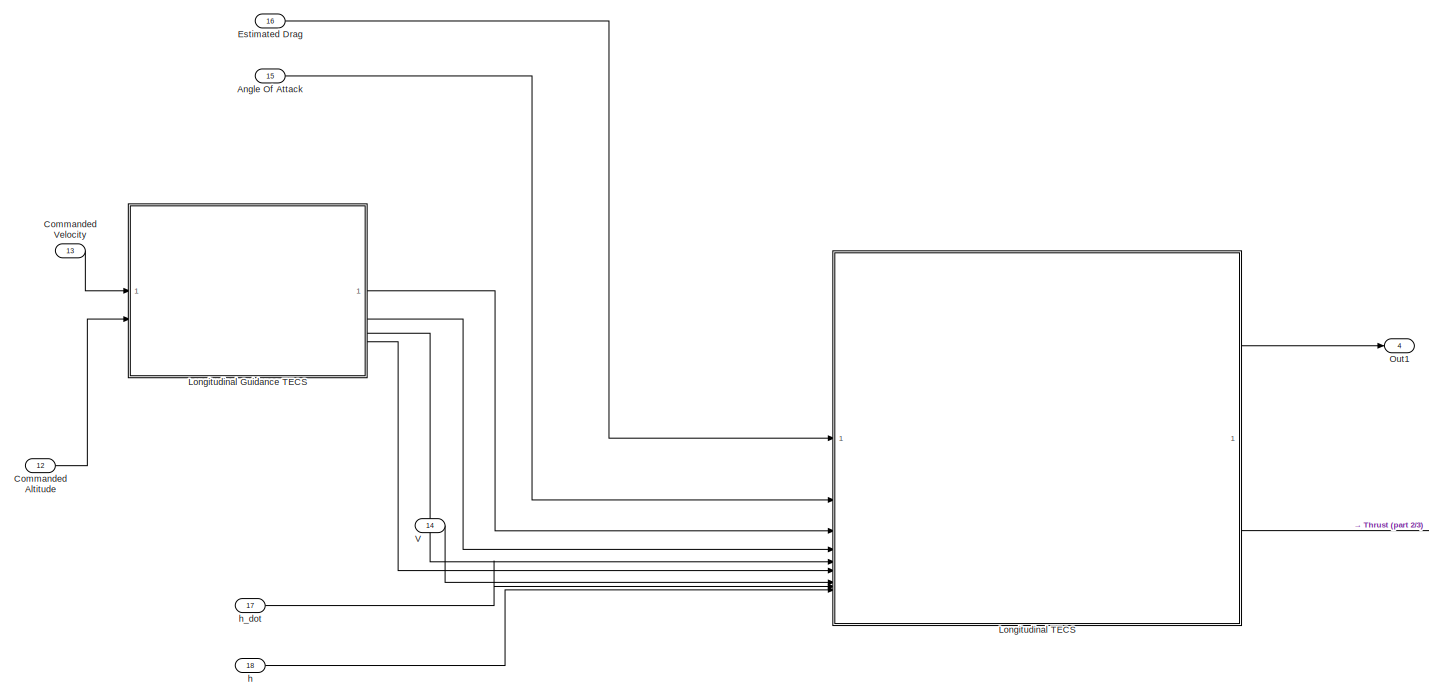
[diagram: root canvas - part 1/3, full width, top band]
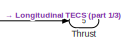
[diagram: root canvas - part 2/3, middle right region]
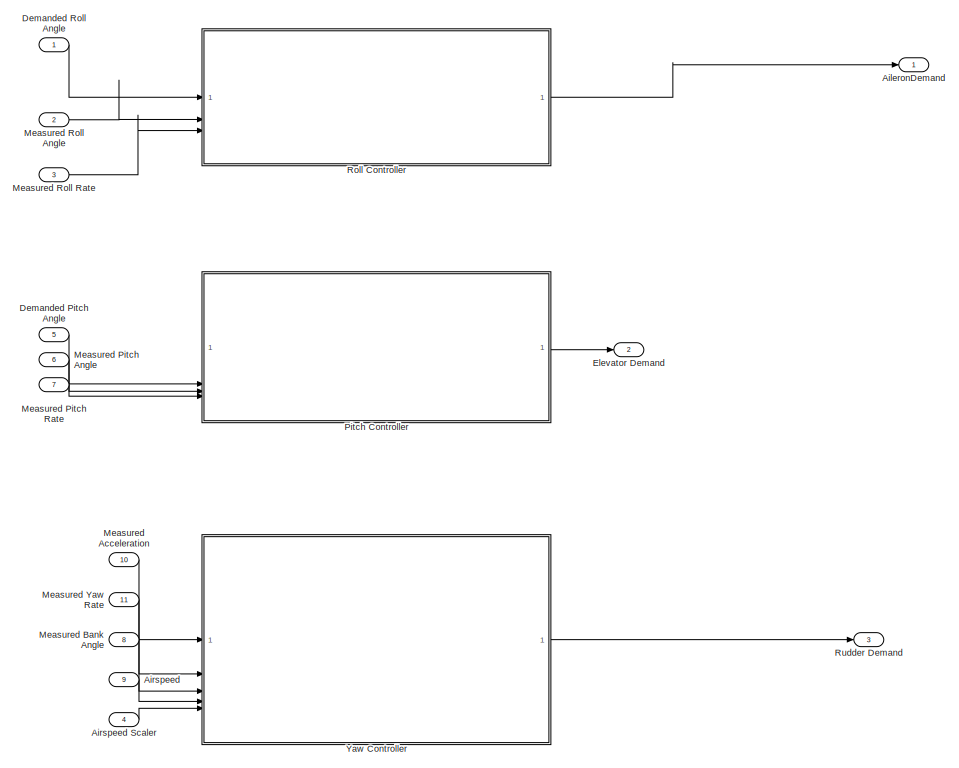
[diagram: root canvas - part 3/3, bottom center region]
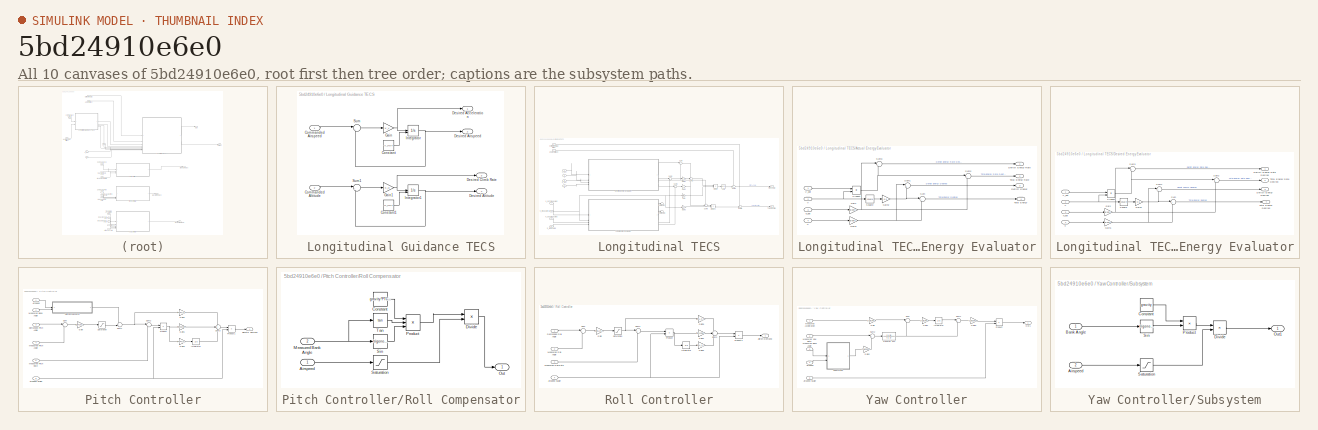
[diagram: thumbnail index - all 10 canvases of the model, root first then tree order]
MODEL slx_5bd24910e6e0
KIND model
CONFIG AbsTol = auto
CONFIG EnableMultiTasking = off
CONFIG FixedStep = auto
CONFIG MaxStep = auto
CONFIG MinStep = auto
CONFIG RelTol = 1e-3
CONFIG SampleTimeConstraint = Unconstrained
CONFIG SolverName = VariableStepAuto
CONFIG StartTime = 0.0
CONFIG StopTime = 10.0
BLOCK [Outport] AileronDemand
BLOCK [Inport] Airspeed 
  Port = 9
BLOCK [Inport] Airspeed Scaler
  Port = 4
BLOCK [Inport] Angle Of Attack
  Port = 15
BLOCK [Inport] Commanded Altitude
  Port = 12
BLOCK [Inport] Commanded Velocity
  Port = 13
BLOCK [Inport] Demanded Pitch Angle
  Port = 5
BLOCK [Inport] Demanded Roll Angle
BLOCK [Outport] Elevator Demand
  Port = 2
BLOCK [Inport] Estimated Drag
  Port = 16
BLOCK [SubSystem] Longitudinal Guidance TECS
BLOCK [Inport] Longitudinal Guidance TECS/Commanded Airspeed
BLOCK [Inport] Longitudinal Guidance TECS/Commanded Altitude
  Port = 2
BLOCK [Constant] Longitudinal Guidance TECS/Constant
  Value = V_INIT
BLOCK [Constant] Longitudinal Guidance TECS/Constant1
  Value = H_INIT
BLOCK [Outport] Longitudinal Guidance TECS/Desired Acceleration
BLOCK [Outport] Longitudinal Guidance TECS/Desired Airspeed
  Port = 2
BLOCK [Outport] Longitudinal Guidance TECS/Desired Altitude
  Port = 4
BLOCK [Outport] Longitudinal Guidance TECS/Desired Climb Rate
  Port = 3
BLOCK [Gain] Longitudinal Guidance TECS/Gain
  Gain = K_V
BLOCK [Gain] Longitudinal Guidance TECS/Gain1
  Gain = K_H
BLOCK [Integrator] Longitudinal Guidance TECS/Integrator
  InitialConditionSource = external
BLOCK [Integrator] Longitudinal Guidance TECS/Integrator1
  InitialConditionSource = external
BLOCK [Sum] Longitudinal Guidance TECS/Sum
  Inputs = |+-
BLOCK [Sum] Longitudinal Guidance TECS/Sum1
  Inputs = |+-
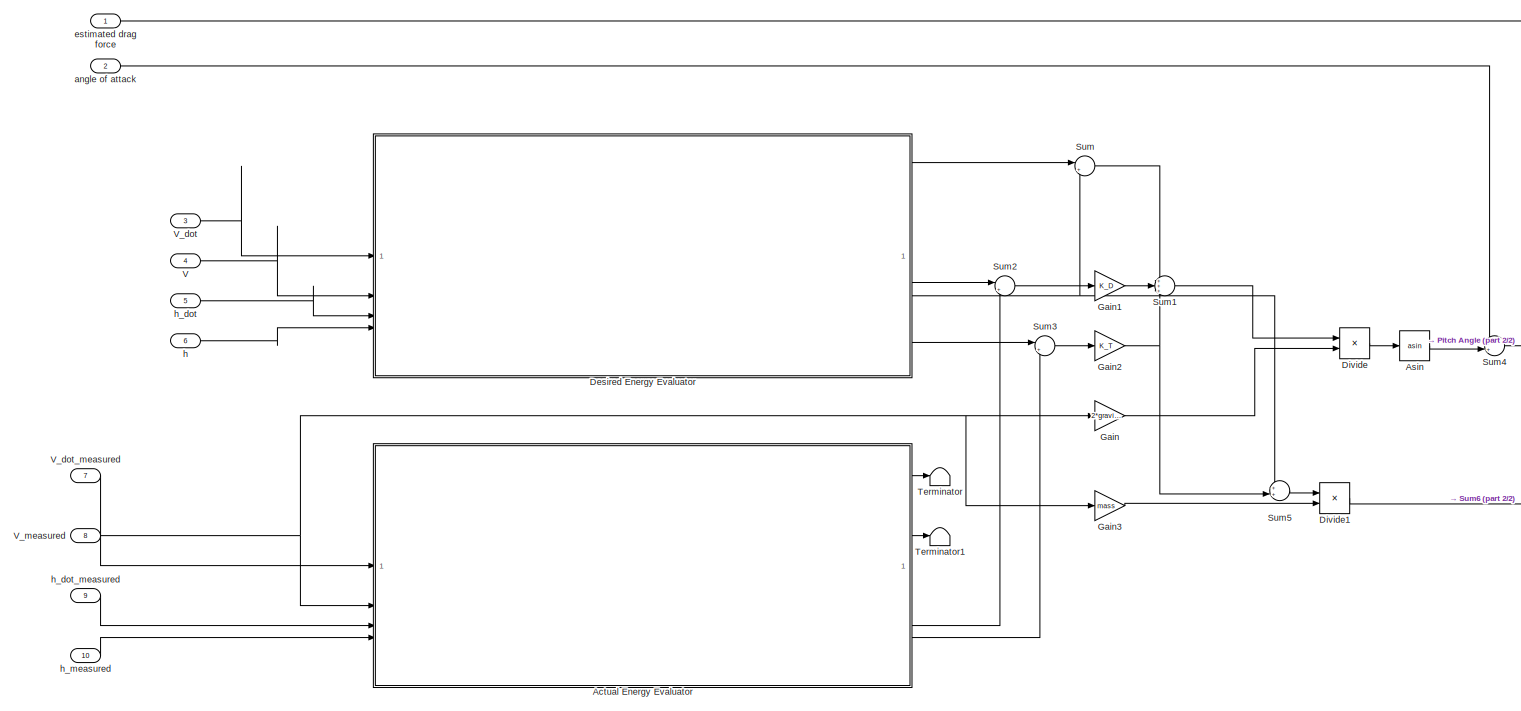
[diagram: Longitudinal TECS - part 1/2, most of the canvas]
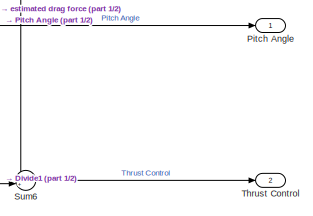
[diagram: Longitudinal TECS - part 2/2, middle right region]
BLOCK [SubSystem] Longitudinal TECS
BLOCK [SubSystem] Longitudinal TECS/Actual Energy Evaluator
BLOCK [Outport] Longitudinal TECS/Actual Energy Evaluator/Deficit Energy
  Port = 3
BLOCK [Outport] Longitudinal TECS/Actual Energy Evaluator/Deficit Energy Rate
BLOCK [Gain] Longitudinal TECS/Actual Energy Evaluator/Gain
  Gain = gravity
BLOCK [Gain] Longitudinal TECS/Actual Energy Evaluator/Gain1
  Gain = gravity
BLOCK [Gain] Longitudinal TECS/Actual Energy Evaluator/Gain2
  Gain = 0.5
BLOCK [Product] Longitudinal TECS/Actual Energy Evaluator/Product
BLOCK [Math] Longitudinal TECS/Actual Energy Evaluator/Square
  Operator = square
BLOCK [Sum] Longitudinal TECS/Actual Energy Evaluator/Sum
  Inputs = |++
BLOCK [Sum] Longitudinal TECS/Actual Energy Evaluator/Sum1
  Inputs = |+-
BLOCK [Sum] Longitudinal TECS/Actual Energy Evaluator/Sum2
  Inputs = |++
BLOCK [Sum] Longitudinal TECS/Actual Energy Evaluator/Sum3
  Inputs = |+-
BLOCK [Outport] Longitudinal TECS/Actual Energy Evaluator/Total Energy
  Port = 4
BLOCK [Outport] Longitudinal TECS/Actual Energy Evaluator/Total Energy Rate
  Port = 2
BLOCK [Inport] Longitudinal TECS/Actual Energy Evaluator/V
  Port = 2
BLOCK [Inport] Longitudinal TECS/Actual Energy Evaluator/V_dot
BLOCK [Inport] Longitudinal TECS/Actual Energy Evaluator/h
  Port = 4
BLOCK [Inport] Longitudinal TECS/Actual Energy Evaluator/h_dot
  Port = 3
BLOCK [Trigonometry] Longitudinal TECS/Asin
  Operator = asin
BLOCK [SubSystem] Longitudinal TECS/Desired Energy Evaluator
BLOCK [Outport] Longitudinal TECS/Desired Energy Evaluator/Deficit Energy Desired
  Port = 3
BLOCK [Outport] Longitudinal TECS/Desired Energy Evaluator/Deficit Energy Rate Desired
BLOCK [Gain] Longitudinal TECS/Desired Energy Evaluator/Gain
  Gain = gravity
BLOCK [Gain] Longitudinal TECS/Desired Energy Evaluator/Gain1
  Gain = gravity
BLOCK [Gain] Longitudinal TECS/Desired Energy Evaluator/Gain2
  Gain = 0.5
BLOCK [Product] Longitudinal TECS/Desired Energy Evaluator/Product
BLOCK [Math] Longitudinal TECS/Desired Energy Evaluator/Square
  Operator = square
BLOCK [Sum] Longitudinal TECS/Desired Energy Evaluator/Sum
  Inputs = |++
BLOCK [Sum] Longitudinal TECS/Desired Energy Evaluator/Sum1
  Inputs = |+-
BLOCK [Sum] Longitudinal TECS/Desired Energy Evaluator/Sum2
  Inputs = |++
BLOCK [Sum] Longitudinal TECS/Desired Energy Evaluator/Sum3
  Inputs = |+-
BLOCK [Outport] Longitudinal TECS/Desired Energy Evaluator/Total Energy Desired
  Port = 4
BLOCK [Outport] Longitudinal TECS/Desired Energy Evaluator/Total Energy Rate Desired
  Port = 2
BLOCK [Inport] Longitudinal TECS/Desired Energy Evaluator/V
  Port = 2
BLOCK [Inport] Longitudinal TECS/Desired Energy Evaluator/V_dot
BLOCK [Inport] Longitudinal TECS/Desired Energy Evaluator/h
  Port = 4
BLOCK [Inport] Longitudinal TECS/Desired Energy Evaluator/h_dot
  Port = 3
BLOCK [Product] Longitudinal TECS/Divide
  Inputs = */
BLOCK [Product] Longitudinal TECS/Divide1
  Inputs = */
BLOCK [Gain] Longitudinal TECS/Gain
  Gain = 2*gravity
BLOCK [Gain] Longitudinal TECS/Gain1
  Gain = K_D
BLOCK [Gain] Longitudinal TECS/Gain2
  Gain = K_T
BLOCK [Gain] Longitudinal TECS/Gain3
  Gain = mass
BLOCK [Outport] Longitudinal TECS/Pitch Angle
BLOCK [Sum] Longitudinal TECS/Sum
  Inputs = |++
BLOCK [Sum] Longitudinal TECS/Sum1
  Inputs = +++
BLOCK [Sum] Longitudinal TECS/Sum2
  Inputs = |+-
BLOCK [Sum] Longitudinal TECS/Sum3
  Inputs = |+-
BLOCK [Sum] Longitudinal TECS/Sum4
  Inputs = ++|
BLOCK [Sum] Longitudinal TECS/Sum5
  Inputs = ++|
BLOCK [Sum] Longitudinal TECS/Sum6
  Inputs = ++|
BLOCK [Terminator] Longitudinal TECS/Terminator
BLOCK [Terminator] Longitudinal TECS/Terminator1
BLOCK [Outport] Longitudinal TECS/Thrust Control
  Port = 2
BLOCK [Inport] Longitudinal TECS/V
  Port = 4
BLOCK [Inport] Longitudinal TECS/V_dot
  Port = 3
BLOCK [Inport] Longitudinal TECS/V_dot_measured
  Port = 7
BLOCK [Inport] Longitudinal TECS/V_measured
  Port = 8
BLOCK [Inport] Longitudinal TECS/angle of attack
  Port = 2
BLOCK [Inport] Longitudinal TECS/estimated drag force
BLOCK [Inport] Longitudinal TECS/h
  Port = 6
BLOCK [Inport] Longitudinal TECS/h_dot
  Port = 5
BLOCK [Inport] Longitudinal TECS/h_dot_measured
  Port = 9
BLOCK [Inport] Longitudinal TECS/h_measured
  Port = 10
BLOCK [Inport] Measured Acceleration
  Port = 10
BLOCK [Inport] Measured Bank Angle
  Port = 8
BLOCK [Inport] Measured Pitch Angle
  Port = 6
BLOCK [Inport] Measured Pitch Rate
  Port = 7
BLOCK [Inport] Measured Roll Angle
  Port = 2
BLOCK [Inport] Measured Roll Rate
  Port = 3
BLOCK [Inport] Measured Yaw Rate
  Port = 11
BLOCK [Outport] Out1
  Port = 4
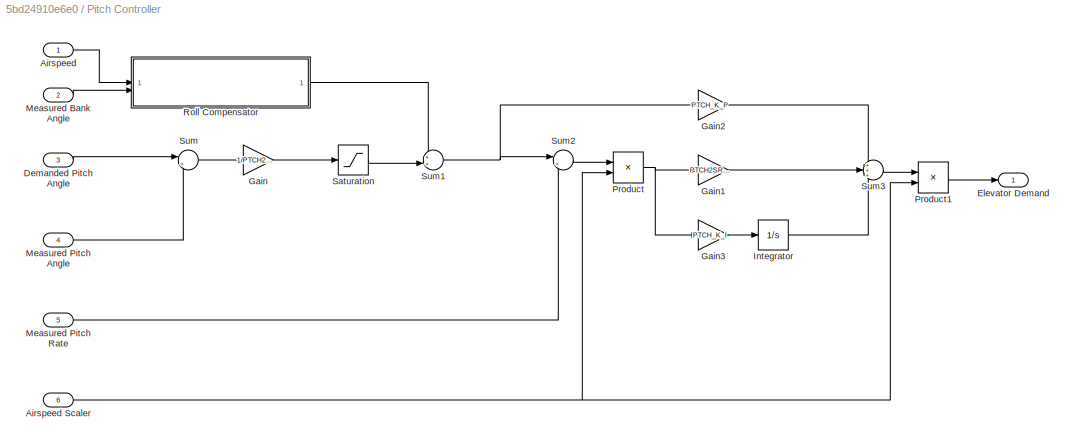
BLOCK [SubSystem] Pitch Controller
BLOCK [Inport] Pitch Controller/Airspeed
BLOCK [Inport] Pitch Controller/Airspeed Scaler
  Port = 6
BLOCK [Inport] Pitch Controller/Demanded Pitch Angle
  Port = 3
BLOCK [Outport] Pitch Controller/Elevator Demand
BLOCK [Gain] Pitch Controller/Gain
  Gain = 1/PTCH2SRV_TCONST
BLOCK [Gain] Pitch Controller/Gain1
  Gain = PTCH2SRV_D
BLOCK [Gain] Pitch Controller/Gain2
  Gain = PTCH_K_P
BLOCK [Gain] Pitch Controller/Gain3
  Gain = PTCH_K_I
BLOCK [Integrator] Pitch Controller/Integrator
BLOCK [Inport] Pitch Controller/Measured Bank Angle
  Port = 2
BLOCK [Inport] Pitch Controller/Measured Pitch Angle
  Port = 4
BLOCK [Inport] Pitch Controller/Measured Pitch Rate
  Port = 5
BLOCK [Product] Pitch Controller/Product
BLOCK [Product] Pitch Controller/Product1
BLOCK [SubSystem] Pitch Controller/Roll Compensator
BLOCK [Inport] Pitch Controller/Roll Compensator/Airspeed
BLOCK [Constant] Pitch Controller/Roll Compensator/Constant
  Value = gravity*PTCH2SRV_RLL
BLOCK [Product] Pitch Controller/Roll Compensator/Divide
  Inputs = */
BLOCK [Inport] Pitch Controller/Roll Compensator/Measured Bank Angle
  Port = 2
BLOCK [Outport] Pitch Controller/Roll Compensator/Out
BLOCK [Product] Pitch Controller/Roll Compensator/Product
  Inputs = 3
BLOCK [Saturate] Pitch Controller/Roll Compensator/Saturation
  LowerLimit = aspd_min
  UpperLimit = inf
BLOCK [Trigonometry] Pitch Controller/Roll Compensator/Sin
BLOCK [Trigonometry] Pitch Controller/Roll Compensator/Tan
  Operator = tan
BLOCK [Saturate] Pitch Controller/Saturation
  LowerLimit = PTCH2SRV_RMAX_DN
  UpperLimit = PTCH2SRV_RMAX_UP
BLOCK [Sum] Pitch Controller/Sum
  Inputs = |+-
BLOCK [Sum] Pitch Controller/Sum1
  Inputs = ++|
BLOCK [Sum] Pitch Controller/Sum2
  Inputs = |+-
BLOCK [Sum] Pitch Controller/Sum3
  Inputs = +++
BLOCK [SubSystem] Roll Controller
BLOCK [Outport] Roll Controller/Aileron Demand
BLOCK [Inport] Roll Controller/Airspeed Scaler
  Port = 4
BLOCK [Inport] Roll Controller/Demanded Roll Angle
BLOCK [Gain] Roll Controller/Gain
  Gain = 1/RLL2SRV_TCONST
BLOCK [Gain] Roll Controller/Gain1
  Gain = RLL2SRV_D
BLOCK [Gain] Roll Controller/Gain2
  Gain = RLL_K_I
BLOCK [Gain] Roll Controller/Gain3
  Gain = RLL_K_P
BLOCK [Integrator] Roll Controller/Integrator
BLOCK [Inport] Roll Controller/Measured Roll Angle
  Port = 2
BLOCK [Inport] Roll Controller/Measured Roll Rate
  Port = 3
BLOCK [Product] Roll Controller/Product
BLOCK [Product] Roll Controller/Product1
BLOCK [Saturate] Roll Controller/Saturation
  LowerLimit = -RLL2SRV_MAX
  UpperLimit = RLL2SRV_MAX
BLOCK [Sum] Roll Controller/Sum
  Inputs = |+-
BLOCK [Sum] Roll Controller/Sum1
  Inputs = |+-
BLOCK [Sum] Roll Controller/Sum2
  Inputs = +++
BLOCK [Outport] Rudder Demand
  Port = 3
BLOCK [Outport] Thrust
  Port = 5
BLOCK [Inport] V
  Port = 14
BLOCK [SubSystem] Yaw Controller
BLOCK [Inport] Yaw Controller/Airspeed
  Port = 4
BLOCK [Inport] Yaw Controller/Airspeed Scaler
  Port = 5
BLOCK [Gain] Yaw Controller/Gain
  Gain = YAW2SRV_SLIP
BLOCK [Gain] Yaw Controller/Gain1
  Gain = YAW2SRV_INT
BLOCK [Gain] Yaw Controller/Gain2
  Gain = YAW2SRV_RLL
BLOCK [Gain] Yaw Controller/Gain3
  Gain = YAW2SRV_DAMP
BLOCK [Integrator] Yaw Controller/Integrator
BLOCK [Inport] Yaw Controller/Measured Acceleration
BLOCK [Inport] Yaw Controller/Measured Bank Angle
  Port = 3
BLOCK [Inport] Yaw Controller/Measured Yaw Rate
  Port = 2
BLOCK [Outport] Yaw Controller/Out1
BLOCK [Product] Yaw Controller/Product
BLOCK [SubSystem] Yaw Controller/Subsystem
BLOCK [Inport] Yaw Controller/Subsystem/Airspeed
  Port = 2
BLOCK [Inport] Yaw Controller/Subsystem/Bank Angle
BLOCK [Constant] Yaw Controller/Subsystem/Constant
  Value = gravity
BLOCK [Product] Yaw Controller/Subsystem/Divide
  Inputs = */
BLOCK [Outport] Yaw Controller/Subsystem/Out1
BLOCK [Product] Yaw Controller/Subsystem/Product
BLOCK [Saturate] Yaw Controller/Subsystem/Saturation
  LowerLimit = aspd_min
  UpperLimit = inf
BLOCK [Trigonometry] Yaw Controller/Subsystem/Sin
BLOCK [Sum] Yaw Controller/Sum
  Inputs = |--
BLOCK [Sum] Yaw Controller/Sum1
  Inputs = |+-
BLOCK [Sum] Yaw Controller/Sum2
  Inputs = |+-
BLOCK [TransferFcn] Yaw Controller/Transfer Fcn
  Denominator = [1 1]
  Numerator = [1 0]
BLOCK [Inport] h
  Port = 18
BLOCK [Inport] h_dot
  Port = 17
LINE Airspeed :1 -> Yaw Controller:4
LINE Airspeed Scaler:1 -> Yaw Controller:5
LINE Angle Of Attack:1 -> Longitudinal TECS:2
LINE Commanded Altitude:1 -> Longitudinal Guidance TECS:2
LINE Commanded Velocity:1 -> Longitudinal Guidance TECS:1
LINE Demanded Pitch Angle:1 -> Pitch Controller:3
LINE Demanded Roll Angle:1 -> Roll Controller:1
LINE Estimated Drag:1 -> Longitudinal TECS:1
LINE Longitudinal Guidance TECS/Commanded Airspeed:1 -> Longitudinal Guidance TECS/Sum:1
LINE Longitudinal Guidance TECS/Commanded Altitude:1 -> Longitudinal Guidance TECS/Sum1:1
LINE Longitudinal Guidance TECS/Constant1:1 -> Longitudinal Guidance TECS/Integrator1:2
LINE Longitudinal Guidance TECS/Constant:1 -> Longitudinal Guidance TECS/Integrator:2
NET Longitudinal Guidance TECS/Gain1:1 -> Longitudinal Guidance TECS/Desired Climb Rate:1, Longitudinal Guidance TECS/Integrator1:1
NET Longitudinal Guidance TECS/Gain:1 -> Longitudinal Guidance TECS/Desired Acceleration:1, Longitudinal Guidance TECS/Integrator:1
NET Longitudinal Guidance TECS/Integrator1:1 -> Longitudinal Guidance TECS/Desired Altitude:1, Longitudinal Guidance TECS/Sum1:2
NET Longitudinal Guidance TECS/Integrator:1 -> Longitudinal Guidance TECS/Desired Airspeed:1, Longitudinal Guidance TECS/Sum:2
LINE Longitudinal Guidance TECS/Sum1:1 -> Longitudinal Guidance TECS/Gain1:1
LINE Longitudinal Guidance TECS/Sum:1 -> Longitudinal Guidance TECS/Gain:1
LINE Longitudinal Guidance TECS:1 -> Longitudinal TECS:3
LINE Longitudinal Guidance TECS:2 -> Longitudinal TECS:4
LINE Longitudinal Guidance TECS:3 -> Longitudinal TECS:5
LINE Longitudinal Guidance TECS:4 -> Longitudinal TECS:6
NET Longitudinal TECS/Actual Energy Evaluator/Gain1:1 -> Longitudinal TECS/Actual Energy Evaluator/Sum1:1, Longitudinal TECS/Actual Energy Evaluator/Sum:2
NET Longitudinal TECS/Actual Energy Evaluator/Gain2:1 -> Longitudinal TECS/Actual Energy Evaluator/Sum1:2, Longitudinal TECS/Actual Energy Evaluator/Sum:1
NET Longitudinal TECS/Actual Energy Evaluator/Gain:1 -> Longitudinal TECS/Actual Energy Evaluator/Sum2:2, Longitudinal TECS/Actual Energy Evaluator/Sum3:1
NET Longitudinal TECS/Actual Energy Evaluator/Product:1 -> Longitudinal TECS/Actual Energy Evaluator/Sum2:1, Longitudinal TECS/Actual Energy Evaluator/Sum3:2
LINE Longitudinal TECS/Actual Energy Evaluator/Square:1 -> Longitudinal TECS/Actual Energy Evaluator/Gain2:1
LINE Longitudinal TECS/Actual Energy Evaluator/Sum1:1 -> Longitudinal TECS/Actual Energy Evaluator/Deficit Energy:1
LINE Longitudinal TECS/Actual Energy Evaluator/Sum2:1 -> Longitudinal TECS/Actual Energy Evaluator/Total Energy Rate:1
LINE Longitudinal TECS/Actual Energy Evaluator/Sum3:1 -> Longitudinal TECS/Actual Energy Evaluator/Deficit Energy Rate:1
LINE Longitudinal TECS/Actual Energy Evaluator/Sum:1 -> Longitudinal TECS/Actual Energy Evaluator/Total Energy:1
NET Longitudinal TECS/Actual Energy Evaluator/V:1 -> Longitudinal TECS/Actual Energy Evaluator/Product:2, Longitudinal TECS/Actual Energy Evaluator/Square:1
LINE Longitudinal TECS/Actual Energy Evaluator/V_dot:1 -> Longitudinal TECS/Actual Energy Evaluator/Product:1
LINE Longitudinal TECS/Actual Energy Evaluator/h:1 -> Longitudinal TECS/Actual Energy Evaluator/Gain1:1
LINE Longitudinal TECS/Actual Energy Evaluator/h_dot:1 -> Longitudinal TECS/Actual Energy Evaluator/Gain:1
LINE Longitudinal TECS/Actual Energy Evaluator:1 -> Longitudinal TECS/Terminator:1
LINE Longitudinal TECS/Actual Energy Evaluator:2 -> Longitudinal TECS/Terminator1:1
LINE Longitudinal TECS/Actual Energy Evaluator:3 -> Longitudinal TECS/Sum2:2
LINE Longitudinal TECS/Actual Energy Evaluator:4 -> Longitudinal TECS/Sum3:2
LINE Longitudinal TECS/Asin:1 -> Longitudinal TECS/Sum4:2
NET Longitudinal TECS/Desired Energy Evaluator/Gain1:1 -> Longitudinal TECS/Desired Energy Evaluator/Sum1:1, Longitudinal TECS/Desired Energy Evaluator/Sum:2
NET Longitudinal TECS/Desired Energy Evaluator/Gain2:1 -> Longitudinal TECS/Desired Energy Evaluator/Sum1:2, Longitudinal TECS/Desired Energy Evaluator/Sum:1
NET Longitudinal TECS/Desired Energy Evaluator/Gain:1 -> Longitudinal TECS/Desired Energy Evaluator/Sum2:2, Longitudinal TECS/Desired Energy Evaluator/Sum3:1
NET Longitudinal TECS/Desired Energy Evaluator/Product:1 -> Longitudinal TECS/Desired Energy Evaluator/Sum2:1, Longitudinal TECS/Desired Energy Evaluator/Sum3:2
LINE Longitudinal TECS/Desired Energy Evaluator/Square:1 -> Longitudinal TECS/Desired Energy Evaluator/Gain2:1
LINE Longitudinal TECS/Desired Energy Evaluator/Sum1:1 -> Longitudinal TECS/Desired Energy Evaluator/Deficit Energy Desired:1
LINE Longitudinal TECS/Desired Energy Evaluator/Sum2:1 -> Longitudinal TECS/Desired Energy Evaluator/Total Energy Rate Desired:1
LINE Longitudinal TECS/Desired Energy Evaluator/Sum3:1 -> Longitudinal TECS/Desired Energy Evaluator/Deficit Energy Rate Desired:1
LINE Longitudinal TECS/Desired Energy Evaluator/Sum:1 -> Longitudinal TECS/Desired Energy Evaluator/Total Energy Desired:1
NET Longitudinal TECS/Desired Energy Evaluator/V:1 -> Longitudinal TECS/Desired Energy Evaluator/Product:2, Longitudinal TECS/Desired Energy Evaluator/Square:1
LINE Longitudinal TECS/Desired Energy Evaluator/V_dot:1 -> Longitudinal TECS/Desired Energy Evaluator/Product:1
LINE Longitudinal TECS/Desired Energy Evaluator/h:1 -> Longitudinal TECS/Desired Energy Evaluator/Gain1:1
LINE Longitudinal TECS/Desired Energy Evaluator/h_dot:1 -> Longitudinal TECS/Desired Energy Evaluator/Gain:1
LINE Longitudinal TECS/Desired Energy Evaluator:1 -> Longitudinal TECS/Sum:1
NET Longitudinal TECS/Desired Energy Evaluator:2 -> Longitudinal TECS/Sum5:1, Longitudinal TECS/Sum:2
LINE Longitudinal TECS/Desired Energy Evaluator:3 -> Longitudinal TECS/Sum2:1
LINE Longitudinal TECS/Desired Energy Evaluator:4 -> Longitudinal TECS/Sum3:1
LINE Longitudinal TECS/Divide1:1 -> Longitudinal TECS/Sum6:2
LINE Longitudinal TECS/Divide:1 -> Longitudinal TECS/Asin:1
LINE Longitudinal TECS/Gain1:1 -> Longitudinal TECS/Sum1:2
NET Longitudinal TECS/Gain2:1 -> Longitudinal TECS/Sum1:3, Longitudinal TECS/Sum5:2
LINE Longitudinal TECS/Gain3:1 -> Longitudinal TECS/Divide1:2
LINE Longitudinal TECS/Gain:1 -> Longitudinal TECS/Divide:2
LINE Longitudinal TECS/Sum1:1 -> Longitudinal TECS/Divide:1
LINE Longitudinal TECS/Sum2:1 -> Longitudinal TECS/Gain1:1
LINE Longitudinal TECS/Sum3:1 -> Longitudinal TECS/Gain2:1
LINE Longitudinal TECS/Sum4:1 -> Longitudinal TECS/Pitch Angle:1
LINE Longitudinal TECS/Sum5:1 -> Longitudinal TECS/Divide1:1
LINE Longitudinal TECS/Sum6:1 -> Longitudinal TECS/Thrust Control:1
LINE Longitudinal TECS/Sum:1 -> Longitudinal TECS/Sum1:1
LINE Longitudinal TECS/V:1 -> Longitudinal TECS/Desired Energy Evaluator:2
LINE Longitudinal TECS/V_dot:1 -> Longitudinal TECS/Desired Energy Evaluator:1
LINE Longitudinal TECS/V_dot_measured:1 -> Longitudinal TECS/Actual Energy Evaluator:1
NET Longitudinal TECS/V_measured:1 -> Longitudinal TECS/Actual Energy Evaluator:2, Longitudinal TECS/Gain3:1, Longitudinal TECS/Gain:1
LINE Longitudinal TECS/angle of attack:1 -> Longitudinal TECS/Sum4:1
LINE Longitudinal TECS/estimated drag force:1 -> Longitudinal TECS/Sum6:1
LINE Longitudinal TECS/h:1 -> Longitudinal TECS/Desired Energy Evaluator:4
LINE Longitudinal TECS/h_dot:1 -> Longitudinal TECS/Desired Energy Evaluator:3
LINE Longitudinal TECS/h_dot_measured:1 -> Longitudinal TECS/Actual Energy Evaluator:3
LINE Longitudinal TECS/h_measured:1 -> Longitudinal TECS/Actual Energy Evaluator:4
LINE Longitudinal TECS:1 -> Out1:1
LINE Longitudinal TECS:2 -> Thrust:1
LINE Measured Acceleration:1 -> Yaw Controller:1
LINE Measured Bank Angle:1 -> Yaw Controller:3
LINE Measured Pitch Angle:1 -> Pitch Controller:4
LINE Measured Pitch Rate:1 -> Pitch Controller:5
LINE Measured Roll Angle:1 -> Roll Controller:2
LINE Measured Roll Rate:1 -> Roll Controller:3
LINE Measured Yaw Rate:1 -> Yaw Controller:2
NET Pitch Controller/Airspeed Scaler:1 -> Pitch Controller/Product1:2, Pitch Controller/Product:2
LINE Pitch Controller/Airspeed:1 -> Pitch Controller/Roll Compensator:1
LINE Pitch Controller/Demanded Pitch Angle:1 -> Pitch Controller/Sum:1
LINE Pitch Controller/Gain1:1 -> Pitch Controller/Sum3:2
LINE Pitch Controller/Gain2:1 -> Pitch Controller/Sum3:1
LINE Pitch Controller/Gain3:1 -> Pitch Controller/Integrator:1
LINE Pitch Controller/Gain:1 -> Pitch Controller/Saturation:1
LINE Pitch Controller/Integrator:1 -> Pitch Controller/Sum3:3
LINE Pitch Controller/Measured Bank Angle:1 -> Pitch Controller/Roll Compensator:2
LINE Pitch Controller/Measured Pitch Angle:1 -> Pitch Controller/Sum:2
LINE Pitch Controller/Measured Pitch Rate:1 -> Pitch Controller/Sum2:2
LINE Pitch Controller/Product1:1 -> Pitch Controller/Elevator Demand:1
NET Pitch Controller/Product:1 -> Pitch Controller/Gain1:1, Pitch Controller/Gain3:1
LINE Pitch Controller/Roll Compensator/Airspeed:1 -> Pitch Controller/Roll Compensator/Saturation:1
LINE Pitch Controller/Roll Compensator/Constant:1 -> Pitch Controller/Roll Compensator/Product:1
LINE Pitch Controller/Roll Compensator/Divide:1 -> Pitch Controller/Roll Compensator/Out:1
NET Pitch Controller/Roll Compensator/Measured Bank Angle:1 -> Pitch Controller/Roll Compensator/Sin:1, Pitch Controller/Roll Compensator/Tan:1
LINE Pitch Controller/Roll Compensator/Product:1 -> Pitch Controller/Roll Compensator/Divide:1
LINE Pitch Controller/Roll Compensator/Saturation:1 -> Pitch Controller/Roll Compensator/Divide:2
LINE Pitch Controller/Roll Compensator/Sin:1 -> Pitch Controller/Roll Compensator/Product:3
LINE Pitch Controller/Roll Compensator/Tan:1 -> Pitch Controller/Roll Compensator/Product:2
LINE Pitch Controller/Roll Compensator:1 -> Pitch Controller/Sum1:1
LINE Pitch Controller/Saturation:1 -> Pitch Controller/Sum1:2
NET Pitch Controller/Sum1:1 -> Pitch Controller/Gain2:1, Pitch Controller/Sum2:1
LINE Pitch Controller/Sum2:1 -> Pitch Controller/Product:1
LINE Pitch Controller/Sum3:1 -> Pitch Controller/Product1:1
LINE Pitch Controller/Sum:1 -> Pitch Controller/Gain:1
LINE Pitch Controller:1 -> Elevator Demand:1
NET Roll Controller/Airspeed Scaler:1 -> Roll Controller/Product1:2, Roll Controller/Product:2
LINE Roll Controller/Demanded Roll Angle:1 -> Roll Controller/Sum:1
LINE Roll Controller/Gain1:1 -> Roll Controller/Sum2:2
LINE Roll Controller/Gain2:1 -> Roll Controller/Sum2:3
LINE Roll Controller/Gain3:1 -> Roll Controller/Sum2:1
LINE Roll Controller/Gain:1 -> Roll Controller/Saturation:1
LINE Roll Controller/Integrator:1 -> Roll Controller/Gain2:1
LINE Roll Controller/Measured Roll Angle:1 -> Roll Controller/Sum:2
LINE Roll Controller/Measured Roll Rate:1 -> Roll Controller/Sum1:2
LINE Roll Controller/Product1:1 -> Roll Controller/Aileron Demand:1
NET Roll Controller/Product:1 -> Roll Controller/Gain1:1, Roll Controller/Integrator:1
NET Roll Controller/Saturation:1 -> Roll Controller/Gain3:1, Roll Controller/Sum1:1
LINE Roll Controller/Sum1:1 -> Roll Controller/Product:1
LINE Roll Controller/Sum2:1 -> Roll Controller/Product1:1
LINE Roll Controller/Sum:1 -> Roll Controller/Gain:1
LINE Roll Controller:1 -> AileronDemand:1
LINE V:1 -> Longitudinal TECS:8
LINE Yaw Controller/Airspeed Scaler:1 -> Yaw Controller/Product:2
LINE Yaw Controller/Airspeed:1 -> Yaw Controller/Subsystem:2
LINE Yaw Controller/Gain1:1 -> Yaw Controller/Integrator:1
LINE Yaw Controller/Gain2:1 -> Yaw Controller/Sum2:2
LINE Yaw Controller/Gain3:1 -> Yaw Controller/Product:1
LINE Yaw Controller/Gain:1 -> Yaw Controller/Sum:1
LINE Yaw Controller/Integrator:1 -> Yaw Controller/Sum1:1
LINE Yaw Controller/Measured Acceleration:1 -> Yaw Controller/Gain:1
LINE Yaw Controller/Measured Bank Angle:1 -> Yaw Controller/Subsystem:1
LINE Yaw Controller/Measured Yaw Rate:1 -> Yaw Controller/Sum2:1
LINE Yaw Controller/Product:1 -> Yaw Controller/Out1:1
LINE Yaw Controller/Subsystem/Airspeed:1 -> Yaw Controller/Subsystem/Saturation:1
LINE Yaw Controller/Subsystem/Bank Angle:1 -> Yaw Controller/Subsystem/Sin:1
LINE Yaw Controller/Subsystem/Constant:1 -> Yaw Controller/Subsystem/Product:1
LINE Yaw Controller/Subsystem/Divide:1 -> Yaw Controller/Subsystem/Out1:1
LINE Yaw Controller/Subsystem/Product:1 -> Yaw Controller/Subsystem/Divide:1
LINE Yaw Controller/Subsystem/Saturation:1 -> Yaw Controller/Subsystem/Divide:2
LINE Yaw Controller/Subsystem/Sin:1 -> Yaw Controller/Subsystem/Product:2
LINE Yaw Controller/Subsystem:1 -> Yaw Controller/Gain2:1
LINE Yaw Controller/Sum1:1 -> Yaw Controller/Gain3:1
LINE Yaw Controller/Sum2:1 -> Yaw Controller/Transfer Fcn:1
LINE Yaw Controller/Sum:1 -> Yaw Controller/Gain1:1
NET Yaw Controller/Transfer Fcn:1 -> Yaw Controller/Sum1:2, Yaw Controller/Sum:2
LINE Yaw Controller:1 -> Rudder Demand:1
LINE h:1 -> Longitudinal TECS:10
LINE h_dot:1 -> Longitudinal TECS:9
note: NET lines group one-source signal fan-out (src -> all destinations, sorted); 1:1 wires keep LINE
